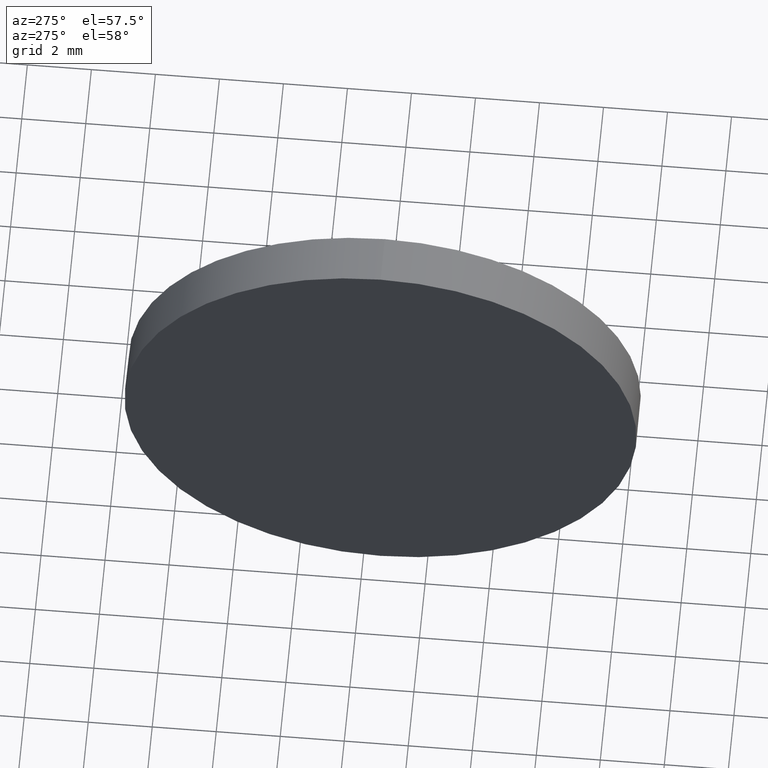
[diagram: clean part render]
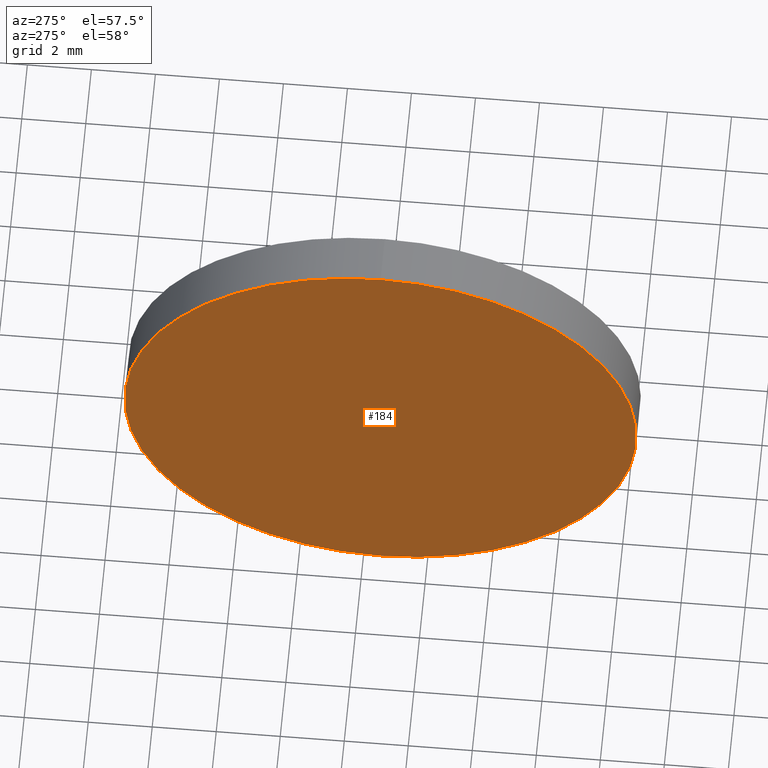
[diagram: same view with one face highlighted and labeled with its STEP entity id]
A machine part, auxiliary view. The second image highlights one B-rep face of the part: STEP entity #184.
In plain terms, the highlighted planar face has unit normal (1, 0, 0).
Its self-contained STEP definition (entity closure, byte-faithful):
#2 = CIRCLE ( 'NONE', #118, 7.999999999999979600 ) ;
#4 = VERTEX_POINT ( 'NONE', #40 ) ;
#9 = EDGE_CURVE ( 'NONE', #12, #4, #2, .T. ) ;
#12 = VERTEX_POINT ( 'NONE', #124 ) ;
#13 = DIRECTION ( 'NONE',  ( 0.0000000000000000000, 0.0000000000000000000, 1.000000000000000000 ) ) ;
#21 = CARTESIAN_POINT ( 'NONE',  ( 620.6910119577842100, 125.4531705715125000, 0.0000000000000000000 ) ) ;
#25 = CARTESIAN_POINT ( 'NONE',  ( 620.6910119577842100, 125.4531705715125000, 0.0000000000000000000 ) ) ;
#28 = DIRECTION ( 'NONE',  ( 0.0000000000000000000, 0.0000000000000000000, -1.000000000000000000 ) ) ;
#34 = DIRECTION ( 'NONE',  ( -1.000000000000000000, -0.0000000000000000000, -0.0000000000000000000 ) ) ;
#40 = CARTESIAN_POINT ( 'NONE',  ( 620.6910119577842100, 125.4531705715125000, 7.999999999999979600 ) ) ;
#71 = FACE_OUTER_BOUND ( 'NONE', #167, .T. ) ;
#72 = EDGE_CURVE ( 'NONE', #4, #12, #77, .T. ) ;
#77 = CIRCLE ( 'NONE', #164, 7.999999999999979600 ) ;
#79 = AXIS2_PLACEMENT_3D ( 'NONE', #25, #152, #28 ) ;
#82 = ORIENTED_EDGE ( 'NONE', *, *, #72, .T. ) ;
#102 = ORIENTED_EDGE ( 'NONE', *, *, #9, .T. ) ;
#118 = AXIS2_PLACEMENT_3D ( 'NONE', #159, #151, #13 ) ;
#124 = CARTESIAN_POINT ( 'NONE',  ( 620.6910119577842100, 125.4531705715125000, -7.999999999999979600 ) ) ;
#131 = DIRECTION ( 'NONE',  ( 0.0000000000000000000, 0.0000000000000000000, 1.000000000000000000 ) ) ;
#151 = DIRECTION ( 'NONE',  ( -1.000000000000000000, -0.0000000000000000000, -0.0000000000000000000 ) ) ;
#152 = DIRECTION ( 'NONE',  ( 1.000000000000000000, 0.0000000000000000000, 0.0000000000000000000 ) ) ;
#159 = CARTESIAN_POINT ( 'NONE',  ( 620.6910119577842100, 125.4531705715125000, 0.0000000000000000000 ) ) ;
#164 = AXIS2_PLACEMENT_3D ( 'NONE', #21, #34, #131 ) ;
#167 = EDGE_LOOP ( 'NONE', ( #82, #102 ) ) ;
#173 = PLANE ( 'NONE',  #79 ) ;
#184 = ADVANCED_FACE ( 'NONE', ( #71 ), #173, .F. ) ;